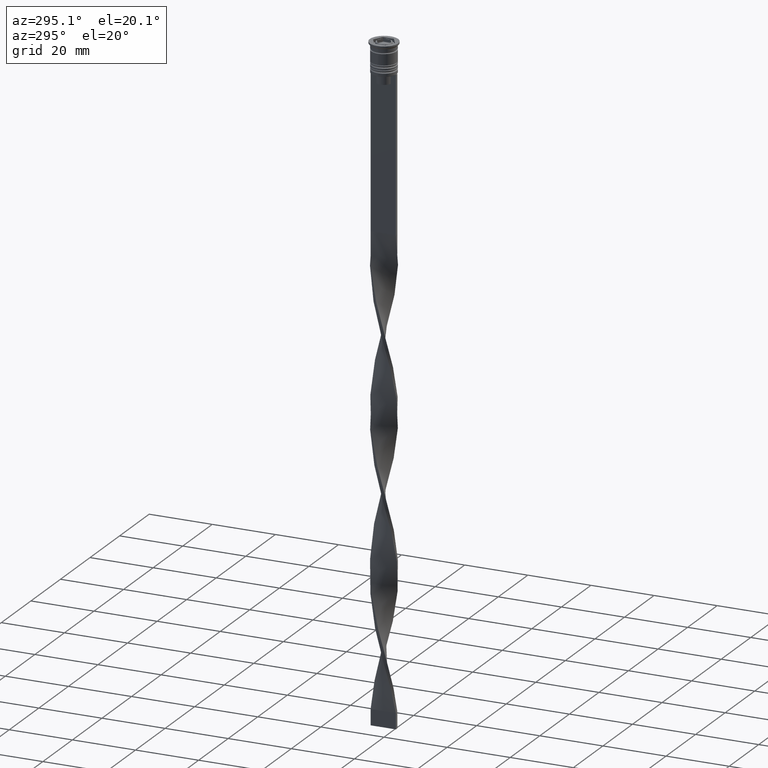
[diagram: clean part render]
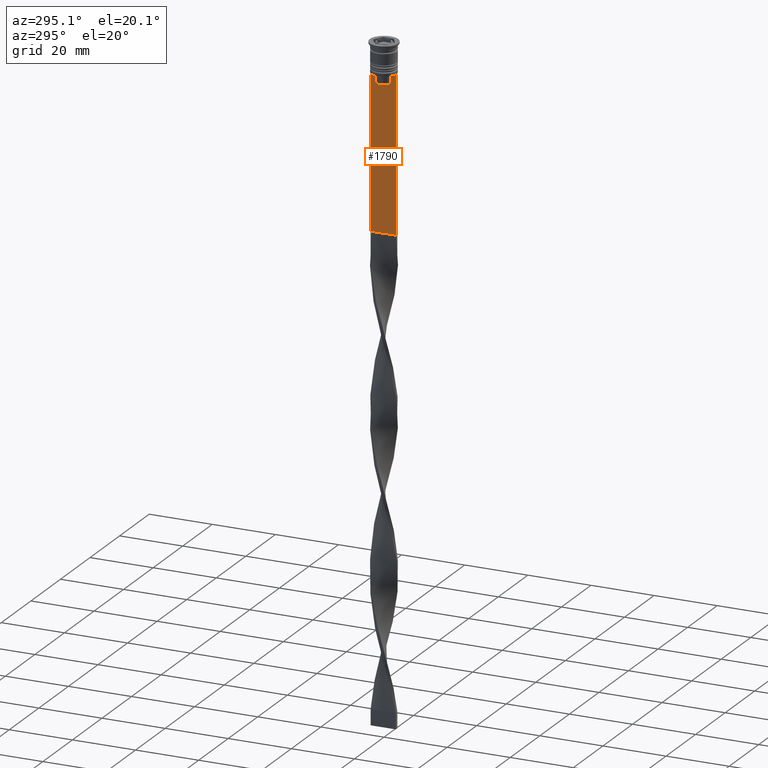
[diagram: same view with one face highlighted and labeled with its STEP entity id]
A machine part, auxiliary view. The second image highlights one B-rep face of the part: STEP entity #1790.
In plain terms, the highlighted planar face has unit normal (-1, 0, 0).
Its self-contained STEP definition (entity closure, byte-faithful):
#11 = CARTESIAN_POINT ( 'NONE',  ( -0.5000000000000000000, 2.347338918861097135, -10.00000000000000000 ) ) ;
#61 = CARTESIAN_POINT ( 'NONE',  ( -0.5000000000000000000, -2.856571371417138572, -9.500000000000000000 ) ) ;
#166 = DIRECTION ( 'NONE',  ( -1.000000000000000000, 0.000000000000000000, 0.000000000000000000 ) ) ;
#233 = DIRECTION ( 'NONE',  ( 0.000000000000000000, 1.000000000000000000, 0.000000000000000000 ) ) ;
#310 = LINE ( 'NONE', #1289, #3580 ) ;
#319 = DIRECTION ( 'NONE',  ( 0.000000000000000000, 0.000000000000000000, -1.000000000000000000 ) ) ;
#357 = CARTESIAN_POINT ( 'NONE',  ( -0.5000000000000000000, -4.000000000000000000, -58.50000000000000000 ) ) ;
#361 = CARTESIAN_POINT ( 'NONE',  ( -0.5000000000000000000, 2.347338918861097135, 0.000000000000000000 ) ) ;
#376 = ORIENTED_EDGE ( 'NONE', *, *, #1037, .F. ) ;
#383 = EDGE_CURVE ( 'NONE', #1906, #886, #310, .T. ) ;
#411 = ORIENTED_EDGE ( 'NONE', *, *, #2990, .F. ) ;
#413 = CARTESIAN_POINT ( 'NONE',  ( -0.5000000000000000000, -2.856571371417138572, -9.500000000000000000 ) ) ;
#424 = FACE_OUTER_BOUND ( 'NONE', #1951, .T. ) ;
#582 = DIRECTION ( 'NONE',  ( 0.000000000000000000, 0.000000000000000000, -1.000000000000000000 ) ) ;
#665 = CARTESIAN_POINT ( 'NONE',  ( -0.5000000000000000000, -3.867815921162741422, -9.500000000000000000 ) ) ;
#669 = ORIENTED_EDGE ( 'NONE', *, *, #1476, .F. ) ;
#748 = VERTEX_POINT ( 'NONE', #357 ) ;
#777 = CARTESIAN_POINT ( 'NONE',  ( -0.5000000000000000000, 4.000000000000000000, -9.500000000000000000 ) ) ;
#886 = VERTEX_POINT ( 'NONE', #2528 ) ;
#888 = EDGE_CURVE ( 'NONE', #2169, #2573, #2771, .T. ) ;
#945 = CARTESIAN_POINT ( 'NONE',  ( -0.5000000000000000000, -2.687095498514037839, -9.666937905752043037 ) ) ;
#1037 = EDGE_CURVE ( 'NONE', #2573, #3908, #2438, .T. ) ;
#1099 = ORIENTED_EDGE ( 'NONE', *, *, #3260, .F. ) ;
#1119 = VERTEX_POINT ( 'NONE', #2153 ) ;
#1165 = DIRECTION ( 'NONE',  ( 0.000000000000000000, -1.000000000000000000, 0.000000000000000000 ) ) ;
#1215 = DIRECTION ( 'NONE',  ( 0.000000000000000000, -1.000000000000000000, 0.000000000000000000 ) ) ;
#1218 = ORIENTED_EDGE ( 'NONE', *, *, #2406, .F. ) ;
#1266 = LINE ( 'NONE', #3689, #2533 ) ;
#1289 = CARTESIAN_POINT ( 'NONE',  ( -0.5000000000000000000, 4.000000000000000000, -1.437742251701450202 ) ) ;
#1387 = DIRECTION ( 'NONE',  ( 0.000000000000000000, 0.000000000000000000, 1.000000000000000000 ) ) ;
#1439 = VERTEX_POINT ( 'NONE', #665 ) ;
#1476 = EDGE_CURVE ( 'NONE', #2242, #3318, #1266, .T. ) ;
#1516 = CARTESIAN_POINT ( 'NONE',  ( -0.5000000000000000000, 2.687094542495897631, -9.666938847453439010 ) ) ;
#1554 = EDGE_CURVE ( 'NONE', #3908, #3071, #3087, .T. ) ;
#1591 = DIRECTION ( 'NONE',  ( 0.000000000000000000, -1.000000000000000000, 0.000000000000000000 ) ) ;
#1642 = CARTESIAN_POINT ( 'NONE',  ( -0.5000000000000000000, -2.347338918861097135, -12.50000000000000000 ) ) ;
#1785 = CARTESIAN_POINT ( 'NONE',  ( -0.5000000000000000000, 3.867815921162741422, -9.500000000000000000 ) ) ;
#1790 = ADVANCED_FACE ( 'NONE', ( #424 ), #2915, .T. ) ;
#1843 = CARTESIAN_POINT ( 'NONE',  ( -0.5000000000000000000, -4.000000000000000000, -9.500000000000000000 ) ) ;
#1863 = DIRECTION ( 'NONE',  ( 0.000000000000000000, -1.000000000000000000, 0.000000000000000000 ) ) ;
#1874 = DIRECTION ( 'NONE',  ( 0.000000000000000000, 0.000000000000000000, -1.000000000000000000 ) ) ;
#1886 = CARTESIAN_POINT ( 'NONE',  ( -0.5000000000000000000, -4.000000000000000000, -9.500000000000000000 ) ) ;
#1887 = VECTOR ( 'NONE', #1863, 1000.000000000000000 ) ;
#1906 = VERTEX_POINT ( 'NONE', #777 ) ;
#1951 = EDGE_LOOP ( 'NONE', ( #2279, #669, #2168, #2681, #1099, #2253, #411, #1218, #2595, #376, #3183, #3547 ) ) ;
#2105 = CARTESIAN_POINT ( 'NONE',  ( -0.5000000000000000000, 2.347338918861097135, -12.50000000000000000 ) ) ;
#2148 = VECTOR ( 'NONE', #1165, 1000.000000000000000 ) ;
#2153 = CARTESIAN_POINT ( 'NONE',  ( -0.5000000000000000000, -4.000000000000000000, -9.500000000000000000 ) ) ;
#2168 = ORIENTED_EDGE ( 'NONE', *, *, #2663, .F. ) ;
#2169 = VERTEX_POINT ( 'NONE', #2105 ) ;
#2181 = EDGE_CURVE ( 'NONE', #1119, #748, #3231, .T. ) ;
#2242 = VERTEX_POINT ( 'NONE', #1785 ) ;
#2253 = ORIENTED_EDGE ( 'NONE', *, *, #2181, .F. ) ;
#2279 = ORIENTED_EDGE ( 'NONE', *, *, #3517, .F. ) ;
#2406 = EDGE_CURVE ( 'NONE', #3071, #1439, #3686, .T. ) ;
#2419 = EDGE_CURVE ( 'NONE', #3539, #2169, #3063, .T. ) ;
#2438 = LINE ( 'NONE', #2697, #2594 ) ;
#2470 = CARTESIAN_POINT ( 'NONE',  ( -0.5000000000000000000, 2.399999999999996803, -12.50000000000000000 ) ) ;
#2480 = CARTESIAN_POINT ( 'NONE',  ( -0.5000000000000000000, -2.517408374291112416, -9.833662228483172285 ) ) ;
#2528 = CARTESIAN_POINT ( 'NONE',  ( -0.5000000000000000000, 4.000000000000000000, -58.50000000000000000 ) ) ;
#2533 = VECTOR ( 'NONE', #1591, 1000.000000000000000 ) ;
#2573 = VERTEX_POINT ( 'NONE', #1642 ) ;
#2594 = VECTOR ( 'NONE', #3884, 1000.000000000000000 ) ;
#2595 = ORIENTED_EDGE ( 'NONE', *, *, #1554, .F. ) ;
#2663 = EDGE_CURVE ( 'NONE', #1906, #2242, #3279, .T. ) ;
#2681 = ORIENTED_EDGE ( 'NONE', *, *, #383, .T. ) ;
#2697 = CARTESIAN_POINT ( 'NONE',  ( -0.5000000000000000000, -2.347338918861097135, 0.000000000000000000 ) ) ;
#2751 = LINE ( 'NONE', #1843, #3601 ) ;
#2771 = LINE ( 'NONE', #2470, #1887 ) ;
#2875 = CARTESIAN_POINT ( 'NONE',  ( -0.5000000000000000000, -4.000000000000000000, -1.437742251701450202 ) ) ;
#2915 = PLANE ( 'NONE',  #3103 ) ;
#2928 = VECTOR ( 'NONE', #233, 1000.000000000000000 ) ;
#2962 = CARTESIAN_POINT ( 'NONE',  ( -0.5000000000000000000, -4.000000000000000000, -58.50000000000000000 ) ) ;
#2980 = LINE ( 'NONE', #2962, #2928 ) ;
#2990 = EDGE_CURVE ( 'NONE', #1439, #1119, #2751, .T. ) ;
#3015 = CARTESIAN_POINT ( 'NONE',  ( -0.5000000000000000000, 2.347338918861097135, -10.00000000000000000 ) ) ;
#3032 = CARTESIAN_POINT ( 'NONE',  ( -0.5000000000000000000, 2.517407211010871393, -9.833663366238582171 ) ) ;
#3063 = LINE ( 'NONE', #361, #3660 ) ;
#3071 = VERTEX_POINT ( 'NONE', #413 ) ;
#3087 = B_SPLINE_CURVE_WITH_KNOTS ( 'NONE', 3,
 ( #3727, #2480, #945, #61 ),
 .UNSPECIFIED., .F., .F.,
 ( 4, 4 ),
 ( 0.01178336557230038641, 0.01249758354768160454 ),
 .UNSPECIFIED. ) ;
#3103 = AXIS2_PLACEMENT_3D ( 'NONE', #2875, #166, #1387 ) ;
#3183 = ORIENTED_EDGE ( 'NONE', *, *, #888, .F. ) ;
#3231 = LINE ( 'NONE', #3856, #3785 ) ;
#3258 = B_SPLINE_CURVE_WITH_KNOTS ( 'NONE', 3,
 ( #3344, #1516, #3032, #11 ),
 .UNSPECIFIED., .F., .F.,
 ( 4, 4 ),
 ( 0.004956812174141195064, 0.005670477137898153989 ),
 .UNSPECIFIED. ) ;
#3260 = EDGE_CURVE ( 'NONE', #748, #886, #2980, .T. ) ;
#3279 = LINE ( 'NONE', #3570, #2148 ) ;
#3318 = VERTEX_POINT ( 'NONE', #3813 ) ;
#3344 = CARTESIAN_POINT ( 'NONE',  ( -0.5000000000000000000, 2.856571371417138572, -9.500000000000000000 ) ) ;
#3371 = DIRECTION ( 'NONE',  ( 0.000000000000000000, -1.000000000000000000, 0.000000000000000000 ) ) ;
#3517 = EDGE_CURVE ( 'NONE', #3318, #3539, #3258, .T. ) ;
#3526 = VECTOR ( 'NONE', #3371, 1000.000000000000000 ) ;
#3539 = VERTEX_POINT ( 'NONE', #3015 ) ;
#3547 = ORIENTED_EDGE ( 'NONE', *, *, #2419, .F. ) ;
#3570 = CARTESIAN_POINT ( 'NONE',  ( -0.5000000000000000000, -4.000000000000000000, -9.500000000000000000 ) ) ;
#3580 = VECTOR ( 'NONE', #1874, 1000.000000000000000 ) ;
#3601 = VECTOR ( 'NONE', #1215, 1000.000000000000000 ) ;
#3660 = VECTOR ( 'NONE', #319, 1000.000000000000000 ) ;
#3686 = LINE ( 'NONE', #1886, #3526 ) ;
#3689 = CARTESIAN_POINT ( 'NONE',  ( -0.5000000000000000000, -4.000000000000000000, -9.500000000000000000 ) ) ;
#3727 = CARTESIAN_POINT ( 'NONE',  ( -0.5000000000000000000, -2.347338918861097135, -10.00000000000000000 ) ) ;
#3785 = VECTOR ( 'NONE', #582, 1000.000000000000000 ) ;
#3813 = CARTESIAN_POINT ( 'NONE',  ( -0.5000000000000000000, 2.856571371417138572, -9.500000000000000000 ) ) ;
#3856 = CARTESIAN_POINT ( 'NONE',  ( -0.5000000000000000000, -4.000000000000000000, -1.437742251701450202 ) ) ;
#3884 = DIRECTION ( 'NONE',  ( -0.000000000000000000, -0.000000000000000000, 1.000000000000000000 ) ) ;
#3905 = CARTESIAN_POINT ( 'NONE',  ( -0.5000000000000000000, -2.347338918861097135, -10.00000000000000000 ) ) ;
#3908 = VERTEX_POINT ( 'NONE', #3905 ) ;